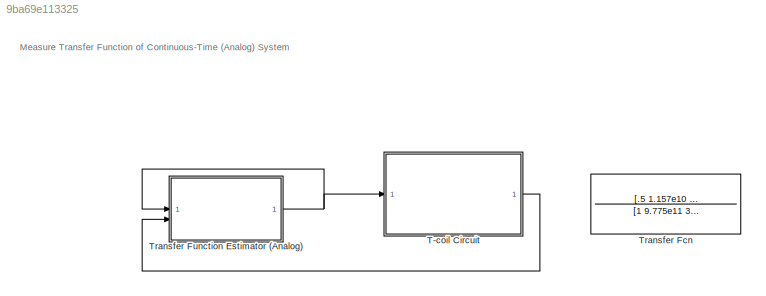
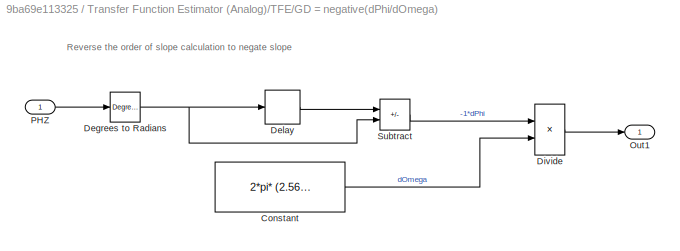
MODEL slx_9ba69e113325
KIND model
CONFIG AbsTol = auto
CONFIG EnableMultiTasking = off
CONFIG FixedStep = auto
CONFIG MaxStep = auto
CONFIG MinStep = auto
CONFIG RelTol = 1e-3
CONFIG SampleTimeConstraint = Unconstrained
CONFIG SolverName = ode15s
CONFIG StartTime = 0.0
CONFIG StopTime = 1e-3
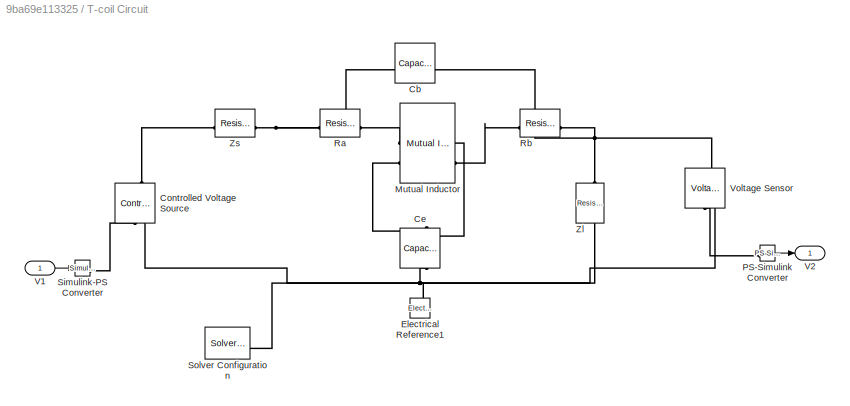
BLOCK [SubSystem] T-coil Circuit
BLOCK [Reference] T-coil Circuit/Cb  REF=ee_lib/Passive/Capacitor
  AttributesFormatString = %<c> %<c_unit>
  NameLocation = top
  SourceBlock = ee_lib/Passive/Capacitor
  SourceType = Capacitor
BLOCK [Reference] T-coil Circuit/Ce  REF=ee_lib/Passive/Capacitor
  AttributesFormatString = %<c> %<c_unit>
  NameLocation = left
  SourceBlock = ee_lib/Passive/Capacitor
  SourceType = Capacitor
BLOCK [Reference] T-coil Circuit/Controlled Voltage Source  REF=fl_lib/Electrical/Electrical Sources/Controlled Voltage
Source
  NameLocation = right
  SourceBlock = fl_lib/Electrical/Electrical Sources/Controlled Voltage\nSource
  SourceType = Controlled Voltage\nSource
BLOCK [Reference] T-coil Circuit/Electrical Reference1  REF=fl_lib/Electrical/Electrical Elements/Electrical Reference
  NameLocation = right
  SourceBlock = fl_lib/Electrical/Electrical Elements/Electrical Reference
  SourceType = Electrical Reference
BLOCK [Reference] T-coil Circuit/Mutual Inductor  REF=fl_lib/Electrical/Electrical Elements/Mutual Inductor
  AttributesFormatString = %<L1> %<L1_unit>\n%<L2> %<L2_unit>
  SourceBlock = fl_lib/Electrical/Electrical Elements/Mutual Inductor
  SourceType = Mutual Inductor
BLOCK [Reference] T-coil Circuit/PS-Simulink Converter  REF=nesl_utility/PS-Simulink
Converter
  SourceBlock = nesl_utility/PS-Simulink\nConverter
  SourceType = PS-Simulink\nConverter
BLOCK [Reference] T-coil Circuit/Ra  REF=ee_lib/Passive/Resistor
  AttributesFormatString = %<R> %<R_unit>
  SourceBlock = ee_lib/Passive/Resistor
  SourceType = Resistor
BLOCK [Reference] T-coil Circuit/Rb  REF=ee_lib/Passive/Resistor
  AttributesFormatString = %<R> %<R_unit>
  SourceBlock = ee_lib/Passive/Resistor
  SourceType = Resistor
BLOCK [Reference] T-coil Circuit/Simulink-PS Converter  REF=nesl_utility/Simulink-PS
Converter
  SourceBlock = nesl_utility/Simulink-PS\nConverter
  SourceType = Simulink-PS\nConverter
BLOCK [Reference] T-coil Circuit/Solver Configuration  REF=nesl_utility/Solver
Configuration
  SourceBlock = nesl_utility/Solver\nConfiguration
  SourceType = Solver\nConfiguration
BLOCK [Inport] T-coil Circuit/V1
BLOCK [Outport] T-coil Circuit/V2
BLOCK [Reference] T-coil Circuit/Voltage Sensor  REF=fl_lib/Electrical/Electrical Sensors/Voltage Sensor
  NameLocation = right
  SourceBlock = fl_lib/Electrical/Electrical Sensors/Voltage Sensor
  SourceType = Voltage Sensor
BLOCK [Reference] T-coil Circuit/Zl  REF=fl_lib/Electrical/Electrical Elements/Resistor
  AttributesFormatString = %<R> %<R_unit>
  NameLocation = left
  SourceBlock = fl_lib/Electrical/Electrical Elements/Resistor
  SourceType = Resistor
BLOCK [Reference] T-coil Circuit/Zs  REF=fl_lib/Electrical/Electrical Elements/Resistor
  AttributesFormatString = %<R> %<R_unit>
  SourceBlock = fl_lib/Electrical/Electrical Elements/Resistor
  SourceType = Resistor
BLOCK [TransferFcn] Transfer Fcn
  Commented = on
  Denominator = [1 9.775e11 3.315e23 5.164e34 3.246e45]
  Numerator = [.5 1.157e10 -3.477e22 1.387e32 1.531e45]
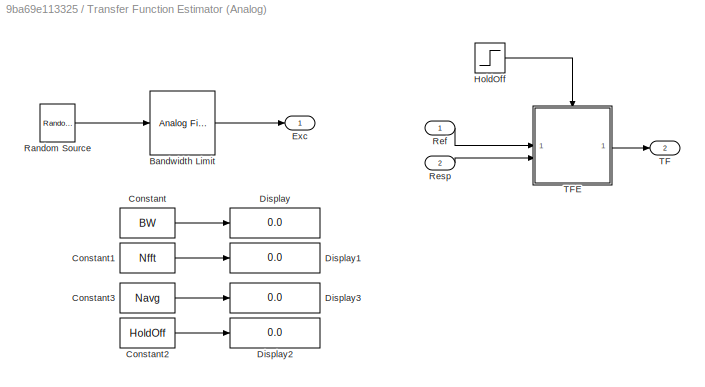
BLOCK [SubSystem] Transfer Function Estimator (Analog)
BLOCK [Reference] Transfer Function Estimator (Analog)/Bandwidth Limit  REF=dspfdesign/Analog
Filter Design
  SourceBlock = dspfdesign/Analog\nFilter Design
  SourceType = Analog Filter Design
BLOCK [Constant] Transfer Function Estimator (Analog)/Constant
  Value = BW
BLOCK [Constant] Transfer Function Estimator (Analog)/Constant1
  Value = Nfft
BLOCK [Constant] Transfer Function Estimator (Analog)/Constant2
  Value = HoldOff
BLOCK [Constant] Transfer Function Estimator (Analog)/Constant3
  Value = Navg
BLOCK [Display] Transfer Function Estimator (Analog)/Display
  Decimation = 1
BLOCK [Display] Transfer Function Estimator (Analog)/Display1
  Decimation = 1
BLOCK [Display] Transfer Function Estimator (Analog)/Display2
  Decimation = 1
BLOCK [Display] Transfer Function Estimator (Analog)/Display3
  Decimation = 1
BLOCK [Outport] Transfer Function Estimator (Analog)/Exc
BLOCK [Step] Transfer Function Estimator (Analog)/HoldOff
  SampleTime = 0
  Time = HoldOff
BLOCK [Reference] Transfer Function Estimator (Analog)/Random Source  REF=dspsrcs4/Random
Source
  SourceBlock = dspsrcs4/Random\nSource
  SourceType = Random Source
  UserDataPersistent = on
BLOCK [Inport] Transfer Function Estimator (Analog)/Ref
BLOCK [Inport] Transfer Function Estimator (Analog)/Resp
  Port = 2
BLOCK [Outport] Transfer Function Estimator (Analog)/TF
  Port = 2
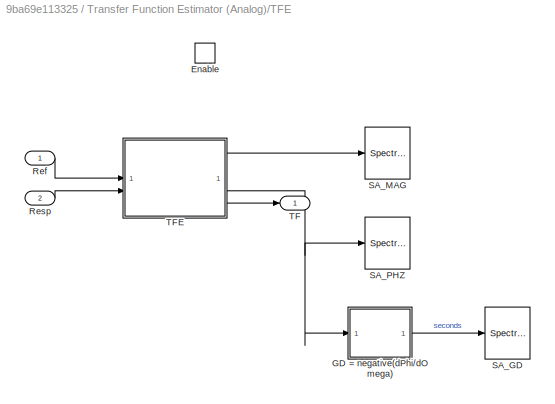
BLOCK [SubSystem] Transfer Function Estimator (Analog)/TFE
BLOCK [EnablePort] Transfer Function Estimator (Analog)/TFE/Enable
BLOCK [SubSystem] Transfer Function Estimator (Analog)/TFE/GD = negative(dPhi//dOmega)
BLOCK [Constant] Transfer Function Estimator (Analog)/TFE/GD = negative(dPhi//dOmega)/Constant
  Value = 2*pi* (2.56*BW)/Nfft
BLOCK [Reference] Transfer Function Estimator (Analog)/TFE/GD = negative(dPhi//dOmega)/Degrees to Radians  REF=simulink_extras/Transformations/Degrees to
Radians
  SourceBlock = simulink_extras/Transformations/Degrees to\nRadians
  SourceType = DegreesToRadians
BLOCK [Delay] Transfer Function Estimator (Analog)/TFE/GD = negative(dPhi//dOmega)/Delay
  DelayLength = 1
  InputPortMap = u0
  InputProcessing = Columns as channels (frame based)
BLOCK [Product] Transfer Function Estimator (Analog)/TFE/GD = negative(dPhi//dOmega)/Divide
  Inputs = */
BLOCK [Outport] Transfer Function Estimator (Analog)/TFE/GD = negative(dPhi//dOmega)/Out1
  VectorParamsAs1DForOutWhenUnconnected = off
BLOCK [Inport] Transfer Function Estimator (Analog)/TFE/GD = negative(dPhi//dOmega)/PHZ
BLOCK [Sum] Transfer Function Estimator (Analog)/TFE/GD = negative(dPhi//dOmega)/Subtract
  IconShape = rectangular
  Inputs = +-
BLOCK [Inport] Transfer Function Estimator (Analog)/TFE/Ref
BLOCK [Inport] Transfer Function Estimator (Analog)/TFE/Resp
  Port = 2
BLOCK [SpectrumAnalyzer] Transfer Function Estimator (Analog)/TFE/SA_GD
  AveragingMethod = Running
  AxesScaling = Manual
  GraphicalSettings = {"GraphicalSettings":{"Style":{"BackgroundColor":[0.12941176470588237,0.12941176470588237,0.12941176470588237],"AxesColor":[0,0,0],"LabelsColor":[0.6862745098039216,0.6862745098039216,0.6862745098039216],"PreserveColors":false,"Visible":[true],"LineStyle":["-"],"LineColor":[[1,1,0.06666666666666667]],"LineWidth":[0.5],"Marker":["none"],"FontSize":"small"},"Cursors":{"Enabled":false,"XLocation":[2,...<+875ch>  <repeated x3 — deduplicated; at blocks: SA_GD, SA_MAG, SA_PHZ>
  InputDomain = Frequency
  InputUnits = dBW
  IsFrequencyInputMode = 1
  Method = Welch
  PlotAsTwoSidedSpectrum = off
  SampleRate = 2*BW
  SampleRateSource = Property
  ScopeSpecificationString = spbscopes.SpectrumAnalyzerBlockCfg('CurrentConfiguration', extmgr.ConfigurationSet(extmgr.Configuration('Core','General UI',true),extmgr.Configuration('Core','Source UI',true),extmgr.Configuration('Sources','WiredSimulink',true),extmgr.Configuration('Sources','SimulinkEvent',false),extmgr.Configuration('Sources','Simulink',false),extmgr.Configuration('Sources','SPTool',false),extmgr.Configuration(...<+3315ch>
  SpectrumUnits = dBW
  Title = Phase Response
  Visible = on
  WasSavedAsWebScope = on
  WindowPosition = [345.000000,56.000000,769.000000,447.000000,]
  YLabel = Degrees
  YLimits = [-1.0584143713275189214,0.1592001832793343008]
BLOCK [SpectrumAnalyzer] Transfer Function Estimator (Analog)/TFE/SA_MAG
  AveragingMethod = Running
  AxesScaling = Manual
  InputDomain = Frequency
  InputUnits = dBW
  IsFrequencyInputMode = 1
  Method = Welch
  PlotAsTwoSidedSpectrum = off
  SampleRate = 2*BW
  SampleRateSource = Property
  ScopeSpecificationString = spbscopes.SpectrumAnalyzerBlockCfg('CurrentConfiguration', extmgr.ConfigurationSet(extmgr.Configuration('Core','General UI',true),extmgr.Configuration('Core','Source UI',true),extmgr.Configuration('Sources','WiredSimulink',true),extmgr.Configuration('Sources','SimulinkEvent',false),extmgr.Configuration('Sources','Simulink',false),extmgr.Configuration('Sources','SPTool',false),extmgr.Configuration(...<+3260ch>
  SpectrumUnits = dBW
  Title = Magnitude Response
  Visible = on
  WasSavedAsWebScope = on
  WindowPosition = [1129.000000,656.000000,771.000000,361.000000,]
  YLimits = [-8.12412494,-5.983135]
BLOCK [SpectrumAnalyzer] Transfer Function Estimator (Analog)/TFE/SA_PHZ
  AveragingMethod = Running
  AxesScaling = Manual
  InputDomain = Frequency
  InputUnits = dBW
  IsFrequencyInputMode = 1
  Method = Welch
  PlotAsTwoSidedSpectrum = off
  SampleRate = 2*BW
  SampleRateSource = Property
  ScopeSpecificationString = spbscopes.SpectrumAnalyzerBlockCfg('CurrentConfiguration', extmgr.ConfigurationSet(extmgr.Configuration('Core','General UI',true),extmgr.Configuration('Core','Source UI',true),extmgr.Configuration('Sources','WiredSimulink',true),extmgr.Configuration('Sources','SimulinkEvent',false),extmgr.Configuration('Sources','Simulink',false),extmgr.Configuration('Sources','SPTool',false),extmgr.Configuration(...<+3310ch>
  SpectrumUnits = dBW
  Title = Phase Response
  Visible = on
  WasSavedAsWebScope = on
  WindowPosition = [1140.000000,132.000000,769.000000,447.000000,]
  YLabel = Degrees
  YLimits = [-224.34422790303892725,224.73028550611314813]
BLOCK [Outport] Transfer Function Estimator (Analog)/TFE/TF
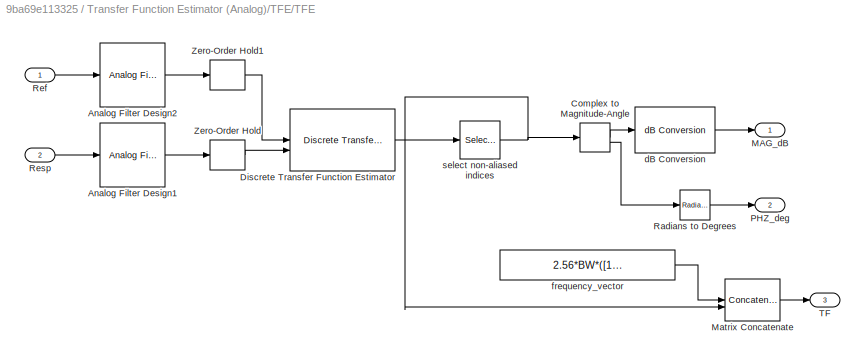
BLOCK [SubSystem] Transfer Function Estimator (Analog)/TFE/TFE
BLOCK [Reference] Transfer Function Estimator (Analog)/TFE/TFE/Analog Filter Design1  REF=dspfdesign/Analog
Filter Design
  SourceBlock = dspfdesign/Analog\nFilter Design
  SourceType = Analog Filter Design
BLOCK [Reference] Transfer Function Estimator (Analog)/TFE/TFE/Analog Filter Design2  REF=dspfdesign/Analog
Filter Design
  SourceBlock = dspfdesign/Analog\nFilter Design
  SourceType = Analog Filter Design
BLOCK [ComplexToMagnitudeAngle] Transfer Function Estimator (Analog)/TFE/TFE/Complex to Magnitude-Angle
BLOCK [Reference] Transfer Function Estimator (Analog)/TFE/TFE/Discrete Transfer Function Estimator  REF=dspspect3/Discrete
Transfer Function
Estimator
  SourceBlock = dspspect3/Discrete\nTransfer Function\nEstimator
  SourceType = Discrete Transfer Function Estimator
BLOCK [Outport] Transfer Function Estimator (Analog)/TFE/TFE/MAG_dB
BLOCK [Concatenate] Transfer Function Estimator (Analog)/TFE/TFE/Matrix Concatenate
  ConcatenateDimension = 2
  Mode = Multidimensional array
BLOCK [Outport] Transfer Function Estimator (Analog)/TFE/TFE/PHZ_deg
  Port = 2
BLOCK [Reference] Transfer Function Estimator (Analog)/TFE/TFE/Radians to Degrees  REF=simulink_extras/Transformations/Radians
to Degrees
  SourceBlock = simulink_extras/Transformations/Radians\nto Degrees
  SourceType = RadiansToDegrees
BLOCK [Inport] Transfer Function Estimator (Analog)/TFE/TFE/Ref
BLOCK [Inport] Transfer Function Estimator (Analog)/TFE/TFE/Resp
  Port = 2
BLOCK [Outport] Transfer Function Estimator (Analog)/TFE/TFE/TF
  Port = 3
BLOCK [ZeroOrderHold] Transfer Function Estimator (Analog)/TFE/TFE/Zero-Order Hold
  SampleTime = 1/(OSR*BW)
BLOCK [ZeroOrderHold] Transfer Function Estimator (Analog)/TFE/TFE/Zero-Order Hold1
  SampleTime = 1/(OSR*BW)
BLOCK [Reference] Transfer Function Estimator (Analog)/TFE/TFE/dB Conversion  REF=dspmathops/dB Conversion
  SourceBlock = dspmathops/dB Conversion
  SourceType = dB Conversion
BLOCK [Constant] Transfer Function Estimator (Analog)/TFE/TFE/frequency_vector
  Value = 2.56*BW*([1:AliasFree]-1)/Nfft
BLOCK [Selector] Transfer Function Estimator (Analog)/TFE/TFE/select non-aliased indices
  IndexOptions = Index vector (dialog),Select all
  Indices = [1:AliasFree ],1
  InputPortWidth = 3
  NumberOfDimensions = 2
  OutputSizes = 1,1
ANNOTATION (root): Measure Transfer Function of Continuous-Time (Analog) System
ANNOTATION Transfer Function Estimator (Analog)/TFE/GD = negative(dPhi//dOmega): Reverse the order of slope calculation to negate slope
LINE T-coil Circuit/PS-Simulink Converter:1 -> T-coil Circuit/V2:1
LINE T-coil Circuit/V1:1 -> T-coil Circuit/Simulink-PS Converter:1
LINE T-coil Circuit:1 -> Transfer Function Estimator (Analog):2
LINE Transfer Function Estimator (Analog)/Bandwidth Limit:1 -> Transfer Function Estimator (Analog)/Exc:1
LINE Transfer Function Estimator (Analog)/Constant1:1 -> Transfer Function Estimator (Analog)/Display1:1
LINE Transfer Function Estimator (Analog)/Constant2:1 -> Transfer Function Estimator (Analog)/Display2:1
LINE Transfer Function Estimator (Analog)/Constant3:1 -> Transfer Function Estimator (Analog)/Display3:1
LINE Transfer Function Estimator (Analog)/Constant:1 -> Transfer Function Estimator (Analog)/Display:1
LINE Transfer Function Estimator (Analog)/HoldOff:1 -> Transfer Function Estimator (Analog)/TFE:enable
LINE Transfer Function Estimator (Analog)/Random Source:1 -> Transfer Function Estimator (Analog)/Bandwidth Limit:1
LINE Transfer Function Estimator (Analog)/Ref:1 -> Transfer Function Estimator (Analog)/TFE:1
LINE Transfer Function Estimator (Analog)/Resp:1 -> Transfer Function Estimator (Analog)/TFE:2
LINE Transfer Function Estimator (Analog)/TFE/GD = negative(dPhi//dOmega)/Constant:1 -> Transfer Function Estimator (Analog)/TFE/GD = negative(dPhi//dOmega)/Divide:2
NET Transfer Function Estimator (Analog)/TFE/GD = negative(dPhi//dOmega)/Degrees to Radians:1 -> Transfer Function Estimator (Analog)/TFE/GD = negative(dPhi//dOmega)/Delay:1, Transfer Function Estimator (Analog)/TFE/GD = negative(dPhi//dOmega)/Subtract:2
LINE Transfer Function Estimator (Analog)/TFE/GD = negative(dPhi//dOmega)/Delay:1 -> Transfer Function Estimator (Analog)/TFE/GD = negative(dPhi//dOmega)/Subtract:1
LINE Transfer Function Estimator (Analog)/TFE/GD = negative(dPhi//dOmega)/Divide:1 -> Transfer Function Estimator (Analog)/TFE/GD = negative(dPhi//dOmega)/Out1:1
LINE Transfer Function Estimator (Analog)/TFE/GD = negative(dPhi//dOmega)/PHZ:1 -> Transfer Function Estimator (Analog)/TFE/GD = negative(dPhi//dOmega)/Degrees to Radians:1
LINE Transfer Function Estimator (Analog)/TFE/GD = negative(dPhi//dOmega)/Subtract:1 -> Transfer Function Estimator (Analog)/TFE/GD = negative(dPhi//dOmega)/Divide:1
LINE Transfer Function Estimator (Analog)/TFE/GD = negative(dPhi//dOmega):1 -> Transfer Function Estimator (Analog)/TFE/SA_GD:1
LINE Transfer Function Estimator (Analog)/TFE/Ref:1 -> Transfer Function Estimator (Analog)/TFE/TFE:1
LINE Transfer Function Estimator (Analog)/TFE/Resp:1 -> Transfer Function Estimator (Analog)/TFE/TFE:2
LINE Transfer Function Estimator (Analog)/TFE/TFE/Analog Filter Design1:1 -> Transfer Function Estimator (Analog)/TFE/TFE/Zero-Order Hold:1
LINE Transfer Function Estimator (Analog)/TFE/TFE/Analog Filter Design2:1 -> Transfer Function Estimator (Analog)/TFE/TFE/Zero-Order Hold1:1
LINE Transfer Function Estimator (Analog)/TFE/TFE/Complex to Magnitude-Angle:1 -> Transfer Function Estimator (Analog)/TFE/TFE/dB Conversion:1
LINE Transfer Function Estimator (Analog)/TFE/TFE/Complex to Magnitude-Angle:2 -> Transfer Function Estimator (Analog)/TFE/TFE/Radians to Degrees:1
LINE Transfer Function Estimator (Analog)/TFE/TFE/Discrete Transfer Function Estimator:1 -> Transfer Function Estimator (Analog)/TFE/TFE/select non-aliased indices:1
LINE Transfer Function Estimator (Analog)/TFE/TFE/Matrix Concatenate:1 -> Transfer Function Estimator (Analog)/TFE/TFE/TF:1
LINE Transfer Function Estimator (Analog)/TFE/TFE/Radians to Degrees:1 -> Transfer Function Estimator (Analog)/TFE/TFE/PHZ_deg:1
LINE Transfer Function Estimator (Analog)/TFE/TFE/Ref:1 -> Transfer Function Estimator (Analog)/TFE/TFE/Analog Filter Design2:1
LINE Transfer Function Estimator (Analog)/TFE/TFE/Resp:1 -> Transfer Function Estimator (Analog)/TFE/TFE/Analog Filter Design1:1
LINE Transfer Function Estimator (Analog)/TFE/TFE/Zero-Order Hold1:1 -> Transfer Function Estimator (Analog)/TFE/TFE/Discrete Transfer Function Estimator:1
LINE Transfer Function Estimator (Analog)/TFE/TFE/Zero-Order Hold:1 -> Transfer Function Estimator (Analog)/TFE/TFE/Discrete Transfer Function Estimator:2
LINE Transfer Function Estimator (Analog)/TFE/TFE/dB Conversion:1 -> Transfer Function Estimator (Analog)/TFE/TFE/MAG_dB:1
LINE Transfer Function Estimator (Analog)/TFE/TFE/frequency_vector:1 -> Transfer Function Estimator (Analog)/TFE/TFE/Matrix Concatenate:1
NET Transfer Function Estimator (Analog)/TFE/TFE/select non-aliased indices:1 -> Transfer Function Estimator (Analog)/TFE/TFE/Complex to Magnitude-Angle:1, Transfer Function Estimator (Analog)/TFE/TFE/Matrix Concatenate:2
LINE Transfer Function Estimator (Analog)/TFE/TFE:1 -> Transfer Function Estimator (Analog)/TFE/SA_MAG:1
NET Transfer Function Estimator (Analog)/TFE/TFE:2 -> Transfer Function Estimator (Analog)/TFE/GD = negative(dPhi//dOmega):1, Transfer Function Estimator (Analog)/TFE/SA_PHZ:1
LINE Transfer Function Estimator (Analog)/TFE/TFE:3 -> Transfer Function Estimator (Analog)/TFE/TF:1
LINE Transfer Function Estimator (Analog)/TFE:1 -> Transfer Function Estimator (Analog)/TF:1
NET Transfer Function Estimator (Analog):1 -> T-coil Circuit:1, Transfer Function Estimator (Analog):1
PNET net1: T-coil Circuit/Cb:LConn1 -- T-coil Circuit/Rb:RConn1 -- T-coil Circuit/Voltage Sensor:LConn1 -- T-coil Circuit/Zl:LConn1
PNET net2: T-coil Circuit/Cb:RConn1 -- T-coil Circuit/Ra:LConn1 -- T-coil Circuit/Zs:RConn1
PNET net3: T-coil Circuit/Ce:LConn1 -- T-coil Circuit/Mutual Inductor:LConn2 -- T-coil Circuit/Mutual Inductor:RConn1
PNET net4: T-coil Circuit/Ce:RConn1 -- T-coil Circuit/Controlled Voltage Source:RConn2 -- T-coil Circuit/Electrical Reference1:LConn1 -- T-coil Circuit/Solver Configuration:RConn1 -- T-coil Circuit/Voltage Sensor:RConn2 -- T-coil Circuit/Zl:RConn1
PLINE T-coil Circuit/Controlled Voltage Source:LConn1 -- T-coil Circuit/Zs:LConn1
PLINE T-coil Circuit/Controlled Voltage Source:RConn1 -- T-coil Circuit/Simulink-PS Converter:RConn1
PLINE T-coil Circuit/Mutual Inductor:LConn1 -- T-coil Circuit/Ra:RConn1
PLINE T-coil Circuit/Mutual Inductor:RConn2 -- T-coil Circuit/Rb:LConn1
PLINE T-coil Circuit/PS-Simulink Converter:LConn1 -- T-coil Circuit/Voltage Sensor:RConn1
note: NET lines group one-source signal fan-out (src -> all destinations, sorted); 1:1 wires keep LINE; PNET lines group multi-terminal physical nets as a canonical sorted terminal list (undirected conserving connections); 2-terminal nets keep the pairwise PLINE form
